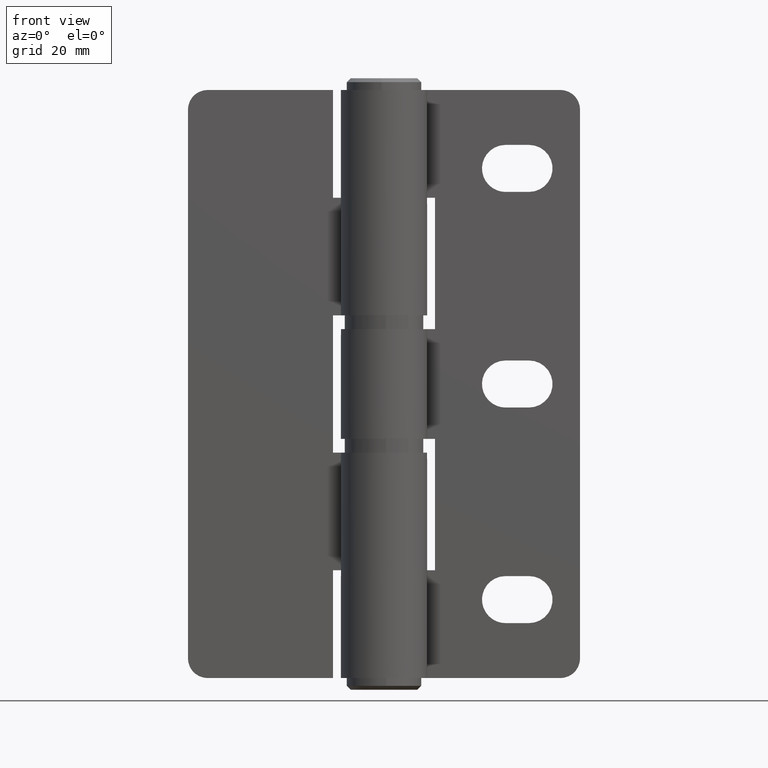
[diagram: clean part render]
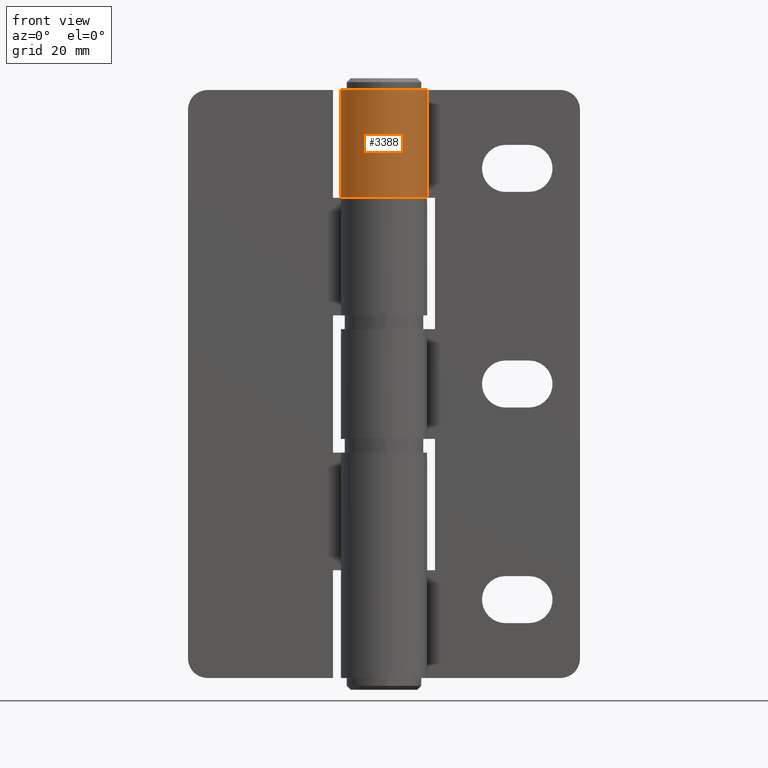
[diagram: same view with one face highlighted and labeled with its STEP entity id]
A machine part, front view. The second image highlights one B-rep face of the part: STEP entity #3388.
In plain terms, the highlighted face is a freeform B-spline surface patch.
Its self-contained STEP definition (entity closure, byte-faithful):
#2278=CARTESIAN_POINT('',(9.251891698458209,5.950000000000000,122.500000000000000));
#2279=VERTEX_POINT('',#2278);
#2285=CARTESIAN_POINT('',(0.0,11.0,122.500000000000000));
#2286=VERTEX_POINT('',#2285);
#2287=CARTESIAN_POINT('',(9.251891698458211,5.950000000000002,122.500000000000000));
#2288=CARTESIAN_POINT('',(13.874373314679708,-1.237680553175686,122.499999999999990));
#2289=CARTESIAN_POINT('',(8.052632441574287,-7.493671380632148,122.500000000000000));
#2290=CARTESIAN_POINT('',(2.230891568468870,-13.749662208088605,122.499999999999990));
#2291=CARTESIAN_POINT('',(-5.270199237220531,-9.655309420210214,122.500000000000000));
#2292=CARTESIAN_POINT('',(-12.771290042909945,-5.560956632331815,122.499999999999990));
#2293=CARTESIAN_POINT('',(-10.658527187710140,2.719521683834099,122.500000000000000));
#2294=CARTESIAN_POINT('',(-8.545764332510327,11.0,122.499999999999990));
#2295=CARTESIAN_POINT('',(0.0,11.0,122.500000000000000));
#2303=(BOUNDED_CURVE()B_SPLINE_CURVE(2,(#2287,#2288,#2289,#2290,#2291,#2292,#2293,#2294,#2295),.UNSPECIFIED.,.F.,.U.)B_SPLINE_CURVE_WITH_KNOTS((3,2,2,2,3),(0.0,0.250000000000000,0.500000000000000,0.750000000000000,1.0),.UNSPECIFIED.)CURVE()GEOMETRIC_REPRESENTATION_ITEM()RATIONAL_B_SPLINE_CURVE((1.0,0.789692738976660,1.0,0.789692738976660,1.0,0.789692738976660,1.0,0.789692738976660,1.0))REPRESENTATION_ITEM(''));
#2304=EDGE_CURVE('',#2279,#2286,#2303,.T.);
#3275=CARTESIAN_POINT('',(0.0,11.0,150.0));
#3276=VERTEX_POINT('',#3275);
#3282=CARTESIAN_POINT('',(9.251891698458209,5.950000000000000,150.0));
#3283=VERTEX_POINT('',#3282);
#3284=CARTESIAN_POINT('',(9.251891698458211,5.950000000000002,150.0));
#3285=CARTESIAN_POINT('',(13.874373314679708,-1.237680553175686,150.0));
#3286=CARTESIAN_POINT('',(8.052632441574287,-7.493671380632148,150.0));
#3287=CARTESIAN_POINT('',(2.230891568468870,-13.749662208088605,150.0));
#3288=CARTESIAN_POINT('',(-5.270199237220531,-9.655309420210214,150.0));
#3289=CARTESIAN_POINT('',(-12.771290042909945,-5.560956632331815,150.0));
#3290=CARTESIAN_POINT('',(-10.658527187710140,2.719521683834099,150.0));
#3291=CARTESIAN_POINT('',(-8.545764332510327,11.0,150.0));
#3292=CARTESIAN_POINT('',(0.0,11.0,150.0));
#3300=(BOUNDED_CURVE()B_SPLINE_CURVE(2,(#3284,#3285,#3286,#3287,#3288,#3289,#3290,#3291,#3292),.UNSPECIFIED.,.F.,.U.)B_SPLINE_CURVE_WITH_KNOTS((3,2,2,2,3),(0.0,0.250000000000000,0.500000000000000,0.750000000000000,1.0),.UNSPECIFIED.)CURVE()GEOMETRIC_REPRESENTATION_ITEM()RATIONAL_B_SPLINE_CURVE((1.0,0.789692738976660,1.0,0.789692738976660,1.0,0.789692738976660,1.0,0.789692738976660,1.0))REPRESENTATION_ITEM(''));
#3301=EDGE_CURVE('',#3283,#3276,#3300,.T.);
#3352=CARTESIAN_POINT('',(0.336778339058821,10.994843352696790,150.687500000000000));
#3353=CARTESIAN_POINT('',(0.336778339058821,10.994843352696790,121.795312499999990));
#3354=CARTESIAN_POINT('',(-13.485634154904789,11.418231751437471,150.687500000000000));
#3355=CARTESIAN_POINT('',(-13.485634154904789,11.418231751437471,121.795312499999990));
#3356=CARTESIAN_POINT('',(-10.788804872322141,-2.145154872487774,150.687500000000000));
#3357=CARTESIAN_POINT('',(-10.788804872322141,-2.145154872487774,121.795312499999990));
#3358=CARTESIAN_POINT('',(-8.091975589739485,-15.708541496413019,150.687500000000000));
#3359=CARTESIAN_POINT('',(-8.091975589739485,-15.708541496413019,121.795312499999990));
#3360=CARTESIAN_POINT('',(4.517127723219371,-10.029733652102779,150.687500000000000));
#3361=CARTESIAN_POINT('',(4.517127723219371,-10.029733652102779,121.795312499999990));
#3362=CARTESIAN_POINT('',(17.126231036178226,-4.350925807792535,150.687500000000000));
#3363=CARTESIAN_POINT('',(17.126231036178226,-4.350925807792535,121.795312499999990));
#3364=CARTESIAN_POINT('',(8.756539584433936,6.657553192145108,150.687500000000000));
#3365=CARTESIAN_POINT('',(8.756539584433936,6.657553192145108,121.795312499999990));
#3373=(BOUNDED_SURFACE()B_SPLINE_SURFACE(1,2,((#3352,#3354,#3356,#3358,#3360,#3362,#3364),(#3353,#3355,#3357,#3359,#3361,#3363,#3365)),.UNSPECIFIED.,.F.,.F.,.U.)B_SPLINE_SURFACE_WITH_KNOTS((2,2),(3,2,2,3),(0.0,28.892187500000020),(0.0,21.223080595973101,42.446161191946203,63.669241787919297),.UNSPECIFIED.)GEOMETRIC_REPRESENTATION_ITEM()RATIONAL_B_SPLINE_SURFACE(((1.0,0.622514636637620,1.0,0.622514636637620,1.0,0.622514636637620,1.0),(1.0,0.622514636637620,1.0,0.622514636637620,1.0,0.622514636637620,1.0)))REPRESENTATION_ITEM('')SURFACE());
#3374=CARTESIAN_POINT('',(0.0,11.0,150.0));
#3375=CARTESIAN_POINT('',(0.0,11.0,122.500000000000000));
#3376=QUASI_UNIFORM_CURVE('',1,(#3374,#3375),.UNSPECIFIED.,.F.,.U.);
#3377=EDGE_CURVE('',#3276,#2286,#3376,.T.);
#3378=ORIENTED_EDGE('',*,*,#3377,.T.);
#3379=ORIENTED_EDGE('',*,*,#2304,.F.);
#3380=CARTESIAN_POINT('',(9.251891698458209,5.950000000000000,150.0));
#3381=CARTESIAN_POINT('',(9.251891698458209,5.950000000000000,122.500000000000000));
#3382=QUASI_UNIFORM_CURVE('',1,(#3380,#3381),.UNSPECIFIED.,.F.,.U.);
#3383=EDGE_CURVE('',#3283,#2279,#3382,.T.);
#3384=ORIENTED_EDGE('',*,*,#3383,.F.);
#3385=ORIENTED_EDGE('',*,*,#3301,.T.);
#3386=EDGE_LOOP('',(#3378,#3379,#3384,#3385));
#3387=FACE_OUTER_BOUND('',#3386,.T.);
#3388=ADVANCED_FACE('',(#3387),#3373,.T.);